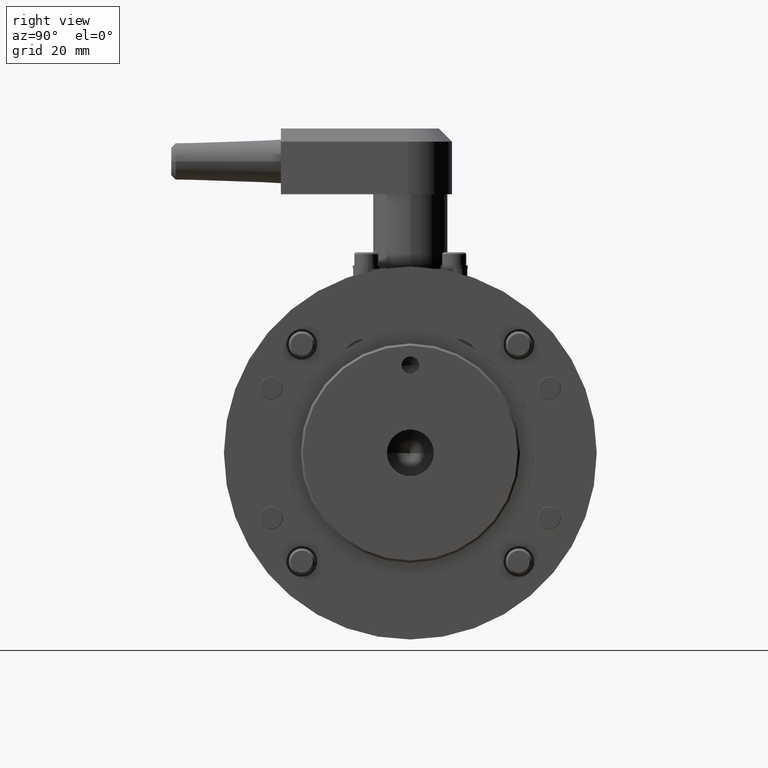
[diagram: clean part render]
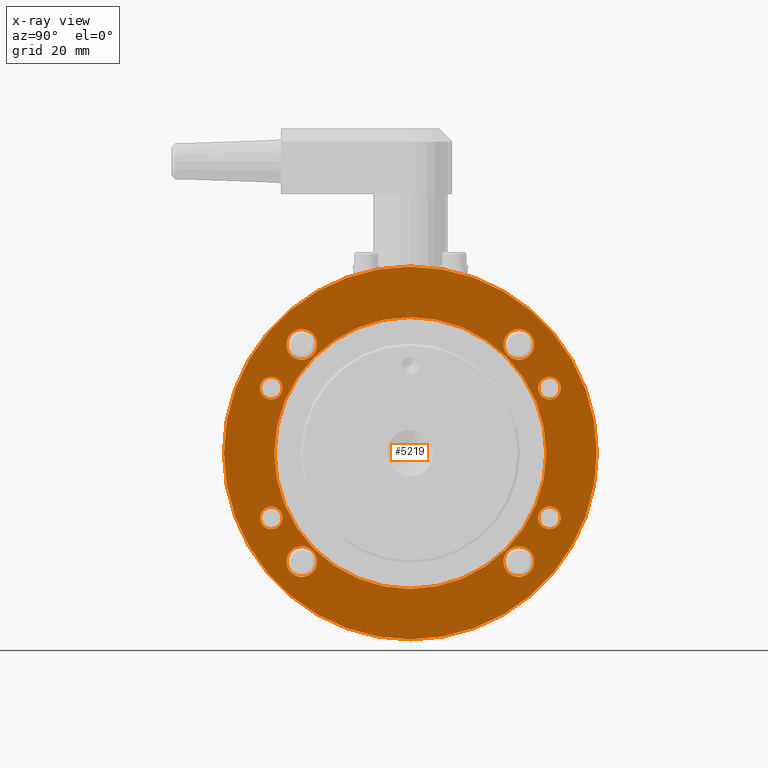
[diagram: x-ray — body ghosted, one internal face saturated and labeled with its STEP entity id]
A machine part, right view, then the same camera in x-ray: the body is ghosted and one INTERNAL B-rep face — a face not visible from any outside direction — is saturated and labeled: STEP entity #5219.
In plain terms, the highlighted planar face has unit normal (-1, 0, 0).
Its self-contained STEP definition (entity closure, byte-faithful):
#4359=CARTESIAN_POINT('',(0.0,-1.524580294577255,36.0));
#4360=VERTEX_POINT('',#4359);
#4369=CARTESIAN_POINT('',(3.796280E-015,-1.524580294577255,-26.0));
#4370=VERTEX_POINT('',#4369);
#4371=CARTESIAN_POINT('',(0.0,-1.524580294577255,5.0));
#4372=DIRECTION('',(0.0,-1.0,0.0));
#4373=DIRECTION('',(0.0,0.0,1.0));
#4374=AXIS2_PLACEMENT_3D('',#4371,#4372,#4373);
#4375=CIRCLE('',#4374,31.0);
#4376=EDGE_CURVE('',#4360,#4370,#4375,.T.);
#4401=CARTESIAN_POINT('',(0.0,-1.524580294577255,47.500000000000000));
#4402=VERTEX_POINT('',#4401);
#4411=CARTESIAN_POINT('',(5.204577E-015,-1.524580294577255,-37.500000000000000));
#4412=VERTEX_POINT('',#4411);
#4413=CARTESIAN_POINT('',(0.0,-1.524580294577255,5.0));
#4414=DIRECTION('',(0.0,-1.0,0.0));
#4415=DIRECTION('',(0.0,0.0,1.0));
#4416=AXIS2_PLACEMENT_3D('',#4413,#4414,#4415);
#4417=CIRCLE('',#4416,42.500000000000000);
#4418=EDGE_CURVE('',#4412,#4402,#4417,.T.);
#4443=CARTESIAN_POINT('',(24.748737341529157,-1.524580294577255,26.248737341529164));
#4444=VERTEX_POINT('',#4443);
#4453=CARTESIAN_POINT('',(24.748737341529157,-1.524580294577248,33.248737341529164));
#4454=VERTEX_POINT('',#4453);
#4455=CARTESIAN_POINT('',(24.748737341529157,-1.524580294577248,29.748737341529164));
#4456=DIRECTION('',(0.0,1.0,0.0));
#4457=DIRECTION('',(0.0,0.0,-1.0));
#4458=AXIS2_PLACEMENT_3D('',#4455,#4456,#4457);
#4459=CIRCLE('',#4458,3.500000000000000);
#4460=EDGE_CURVE('',#4454,#4444,#4459,.T.);
#4485=CARTESIAN_POINT('',(-21.248737341529157,-1.524580294577255,29.748737341529164));
#4486=VERTEX_POINT('',#4485);
#4495=CARTESIAN_POINT('',(-28.248737341529157,-1.524580294577248,29.748737341529164));
#4496=VERTEX_POINT('',#4495);
#4497=CARTESIAN_POINT('',(-24.748737341529157,-1.524580294577248,29.748737341529164));
#4498=DIRECTION('',(0.0,1.0,0.0));
#4499=DIRECTION('',(1.0,0.0,0.0));
#4500=AXIS2_PLACEMENT_3D('',#4497,#4498,#4499);
#4501=CIRCLE('',#4500,3.500000000000000);
#4502=EDGE_CURVE('',#4496,#4486,#4501,.T.);
#4527=CARTESIAN_POINT('',(-24.748737341529161,-1.524580294577255,-16.248737341529161));
#4528=VERTEX_POINT('',#4527);
#4537=CARTESIAN_POINT('',(-24.748737341529161,-1.524580294577248,-23.248737341529161));
#4538=VERTEX_POINT('',#4537);
#4539=CARTESIAN_POINT('',(-24.748737341529161,-1.524580294577248,-19.748737341529161));
#4540=DIRECTION('',(0.0,1.0,0.0));
#4541=DIRECTION('',(0.0,0.0,1.0));
#4542=AXIS2_PLACEMENT_3D('',#4539,#4540,#4541);
#4543=CIRCLE('',#4542,3.500000000000000);
#4544=EDGE_CURVE('',#4538,#4528,#4543,.T.);
#4569=CARTESIAN_POINT('',(21.248737341529157,-1.524580294577255,-19.748737341529164));
#4570=VERTEX_POINT('',#4569);
#4579=CARTESIAN_POINT('',(28.248737341529157,-1.524580294577248,-19.748737341529164));
#4580=VERTEX_POINT('',#4579);
#4581=CARTESIAN_POINT('',(24.748737341529157,-1.524580294577248,-19.748737341529164));
#4582=DIRECTION('',(0.0,1.0,0.0));
#4583=DIRECTION('',(-1.0,0.0,0.0));
#4584=AXIS2_PLACEMENT_3D('',#4581,#4582,#4583);
#4585=CIRCLE('',#4584,3.500000000000000);
#4586=EDGE_CURVE('',#4580,#4570,#4585,.T.);
#4611=CARTESIAN_POINT('',(-31.720772546282749,-1.524580294577255,17.215139160924483));
#4612=VERTEX_POINT('',#4611);
#4621=CARTESIAN_POINT('',(-31.720772546282749,-1.524580294577248,22.368139160924482));
#4622=VERTEX_POINT('',#4621);
#4623=CARTESIAN_POINT('',(-31.720772546282749,-1.524580294577248,19.791639160924483));
#4624=DIRECTION('',(0.0,1.0,0.0));
#4625=DIRECTION('',(0.0,0.0,-1.0));
#4626=AXIS2_PLACEMENT_3D('',#4623,#4624,#4625);
#4627=CIRCLE('',#4626,2.576500000000000);
#4628=EDGE_CURVE('',#4622,#4612,#4627,.T.);
#4653=CARTESIAN_POINT('',(31.719227453717249,-1.524580294577255,17.215139160924483));
#4654=VERTEX_POINT('',#4653);
#4663=CARTESIAN_POINT('',(31.719227453717249,-1.524580294577248,22.368139160924482));
#4664=VERTEX_POINT('',#4663);
#4665=CARTESIAN_POINT('',(31.719227453717249,-1.524580294577248,19.791639160924483));
#4666=DIRECTION('',(0.0,1.0,0.0));
#4667=DIRECTION('',(0.0,0.0,-1.0));
#4668=AXIS2_PLACEMENT_3D('',#4665,#4666,#4667);
#4669=CIRCLE('',#4668,2.576500000000000);
#4670=EDGE_CURVE('',#4664,#4654,#4669,.T.);
#4695=CARTESIAN_POINT('',(-31.720772546282756,-1.524580294577255,-12.364860839075515));
#4696=VERTEX_POINT('',#4695);
#4705=CARTESIAN_POINT('',(-31.720772546282756,-1.524580294577248,-7.211860839075516));
#4706=VERTEX_POINT('',#4705);
#4707=CARTESIAN_POINT('',(-31.720772546282756,-1.524580294577248,-9.788360839075516));
#4708=DIRECTION('',(0.0,1.0,0.0));
#4709=DIRECTION('',(0.0,0.0,-1.0));
#4710=AXIS2_PLACEMENT_3D('',#4707,#4708,#4709);
#4711=CIRCLE('',#4710,2.576500000000000);
#4712=EDGE_CURVE('',#4706,#4696,#4711,.T.);
#4737=CARTESIAN_POINT('',(31.719227453717242,-1.524580294577255,-12.364860839075515));
#4738=VERTEX_POINT('',#4737);
#4747=CARTESIAN_POINT('',(31.719227453717242,-1.524580294577248,-7.211860839075516));
#4748=VERTEX_POINT('',#4747);
#4749=CARTESIAN_POINT('',(31.719227453717242,-1.524580294577248,-9.788360839075516));
#4750=DIRECTION('',(0.0,1.0,0.0));
#4751=DIRECTION('',(0.0,0.0,-1.0));
#4752=AXIS2_PLACEMENT_3D('',#4749,#4750,#4751);
#4753=CIRCLE('',#4752,2.576500000000000);
#4754=EDGE_CURVE('',#4748,#4738,#4753,.T.);
#4788=CARTESIAN_POINT('',(31.719227453717242,-1.524580294577248,-9.788360839075516));
#4789=DIRECTION('',(0.0,1.0,0.0));
#4790=DIRECTION('',(0.0,0.0,-1.0));
#4791=AXIS2_PLACEMENT_3D('',#4788,#4789,#4790);
#4792=CIRCLE('',#4791,2.576500000000000);
#4793=EDGE_CURVE('',#4738,#4748,#4792,.T.);
#4812=CARTESIAN_POINT('',(-31.720772546282756,-1.524580294577248,-9.788360839075516));
#4813=DIRECTION('',(0.0,1.0,0.0));
#4814=DIRECTION('',(0.0,0.0,-1.0));
#4815=AXIS2_PLACEMENT_3D('',#4812,#4813,#4814);
#4816=CIRCLE('',#4815,2.576500000000000);
#4817=EDGE_CURVE('',#4696,#4706,#4816,.T.);
#4836=CARTESIAN_POINT('',(31.719227453717249,-1.524580294577248,19.791639160924483));
#4837=DIRECTION('',(0.0,1.0,0.0));
#4838=DIRECTION('',(0.0,0.0,-1.0));
#4839=AXIS2_PLACEMENT_3D('',#4836,#4837,#4838);
#4840=CIRCLE('',#4839,2.576500000000000);
#4841=EDGE_CURVE('',#4654,#4664,#4840,.T.);
#4860=CARTESIAN_POINT('',(-31.720772546282749,-1.524580294577248,19.791639160924483));
#4861=DIRECTION('',(0.0,1.0,0.0));
#4862=DIRECTION('',(0.0,0.0,-1.0));
#4863=AXIS2_PLACEMENT_3D('',#4860,#4861,#4862);
#4864=CIRCLE('',#4863,2.576500000000000);
#4865=EDGE_CURVE('',#4612,#4622,#4864,.T.);
#5014=CARTESIAN_POINT('',(24.748737341529157,-1.524580294577248,-19.748737341529164));
#5015=DIRECTION('',(0.0,1.0,0.0));
#5016=DIRECTION('',(-1.0,0.0,0.0));
#5017=AXIS2_PLACEMENT_3D('',#5014,#5015,#5016);
#5018=CIRCLE('',#5017,3.500000000000000);
#5019=EDGE_CURVE('',#4570,#4580,#5018,.T.);
#5038=CARTESIAN_POINT('',(-24.748737341529161,-1.524580294577248,-19.748737341529161));
#5039=DIRECTION('',(0.0,1.0,0.0));
#5040=DIRECTION('',(0.0,0.0,1.0));
#5041=AXIS2_PLACEMENT_3D('',#5038,#5039,#5040);
#5042=CIRCLE('',#5041,3.500000000000000);
#5043=EDGE_CURVE('',#4528,#4538,#5042,.T.);
#5062=CARTESIAN_POINT('',(-24.748737341529157,-1.524580294577248,29.748737341529164));
#5063=DIRECTION('',(0.0,1.0,0.0));
#5064=DIRECTION('',(1.0,0.0,0.0));
#5065=AXIS2_PLACEMENT_3D('',#5062,#5063,#5064);
#5066=CIRCLE('',#5065,3.500000000000000);
#5067=EDGE_CURVE('',#4486,#4496,#5066,.T.);
#5086=CARTESIAN_POINT('',(24.748737341529157,-1.524580294577248,29.748737341529164));
#5087=DIRECTION('',(0.0,1.0,0.0));
#5088=DIRECTION('',(0.0,0.0,-1.0));
#5089=AXIS2_PLACEMENT_3D('',#5086,#5087,#5088);
#5090=CIRCLE('',#5089,3.500000000000000);
#5091=EDGE_CURVE('',#4444,#4454,#5090,.T.);
#5158=CARTESIAN_POINT('',(0.0,-1.524580294577255,5.0));
#5159=DIRECTION('',(0.0,-1.0,0.0));
#5160=DIRECTION('',(0.0,0.0,1.0));
#5161=AXIS2_PLACEMENT_3D('',#5158,#5159,#5160);
#5162=CIRCLE('',#5161,42.500000000000000);
#5163=EDGE_CURVE('',#4402,#4412,#5162,.T.);
#5168=CARTESIAN_POINT('',(0.0,-1.524580294577255,36.0));
#5169=DIRECTION('',(0.0,-1.0,0.0));
#5170=DIRECTION('',(0.0,0.0,-1.0));
#5171=AXIS2_PLACEMENT_3D('',#5168,#5169,#5170);
#5172=PLANE('',#5171);
#5173=ORIENTED_EDGE('',*,*,#5163,.T.);
#5174=ORIENTED_EDGE('',*,*,#4418,.T.);
#5175=EDGE_LOOP('',(#5173,#5174));
#5176=FACE_OUTER_BOUND('',#5175,.T.);
#5177=ORIENTED_EDGE('',*,*,#4793,.T.);
#5178=ORIENTED_EDGE('',*,*,#4754,.T.);
#5179=EDGE_LOOP('',(#5177,#5178));
#5180=FACE_BOUND('',#5179,.T.);
#5181=ORIENTED_EDGE('',*,*,#4817,.T.);
#5182=ORIENTED_EDGE('',*,*,#4712,.T.);
#5183=EDGE_LOOP('',(#5181,#5182));
#5184=FACE_BOUND('',#5183,.T.);
#5185=ORIENTED_EDGE('',*,*,#4841,.T.);
#5186=ORIENTED_EDGE('',*,*,#4670,.T.);
#5187=EDGE_LOOP('',(#5185,#5186));
#5188=FACE_BOUND('',#5187,.T.);
#5189=ORIENTED_EDGE('',*,*,#4865,.T.);
#5190=ORIENTED_EDGE('',*,*,#4628,.T.);
#5191=EDGE_LOOP('',(#5189,#5190));
#5192=FACE_BOUND('',#5191,.T.);
#5193=ORIENTED_EDGE('',*,*,#5019,.T.);
#5194=ORIENTED_EDGE('',*,*,#4586,.T.);
#5195=EDGE_LOOP('',(#5193,#5194));
#5196=FACE_BOUND('',#5195,.T.);
#5197=ORIENTED_EDGE('',*,*,#5043,.T.);
#5198=ORIENTED_EDGE('',*,*,#4544,.T.);
#5199=EDGE_LOOP('',(#5197,#5198));
#5200=FACE_BOUND('',#5199,.T.);
#5201=ORIENTED_EDGE('',*,*,#5067,.T.);
#5202=ORIENTED_EDGE('',*,*,#4502,.T.);
#5203=EDGE_LOOP('',(#5201,#5202));
#5204=FACE_BOUND('',#5203,.T.);
#5205=ORIENTED_EDGE('',*,*,#5091,.T.);
#5206=ORIENTED_EDGE('',*,*,#4460,.T.);
#5207=EDGE_LOOP('',(#5205,#5206));
#5208=FACE_BOUND('',#5207,.T.);
#5209=ORIENTED_EDGE('',*,*,#4376,.F.);
#5210=CARTESIAN_POINT('',(0.0,-1.524580294577255,5.0));
#5211=DIRECTION('',(0.0,-1.0,0.0));
#5212=DIRECTION('',(0.0,0.0,1.0));
#5213=AXIS2_PLACEMENT_3D('',#5210,#5211,#5212);
#5214=CIRCLE('',#5213,31.0);
#5215=EDGE_CURVE('',#4370,#4360,#5214,.T.);
#5216=ORIENTED_EDGE('',*,*,#5215,.F.);
#5217=EDGE_LOOP('',(#5209,#5216));
#5218=FACE_BOUND('',#5217,.T.);
#5219=ADVANCED_FACE('',(#5176,#5180,#5184,#5188,#5192,#5196,#5200,#5204,#5208,#5218),#5172,.T.);